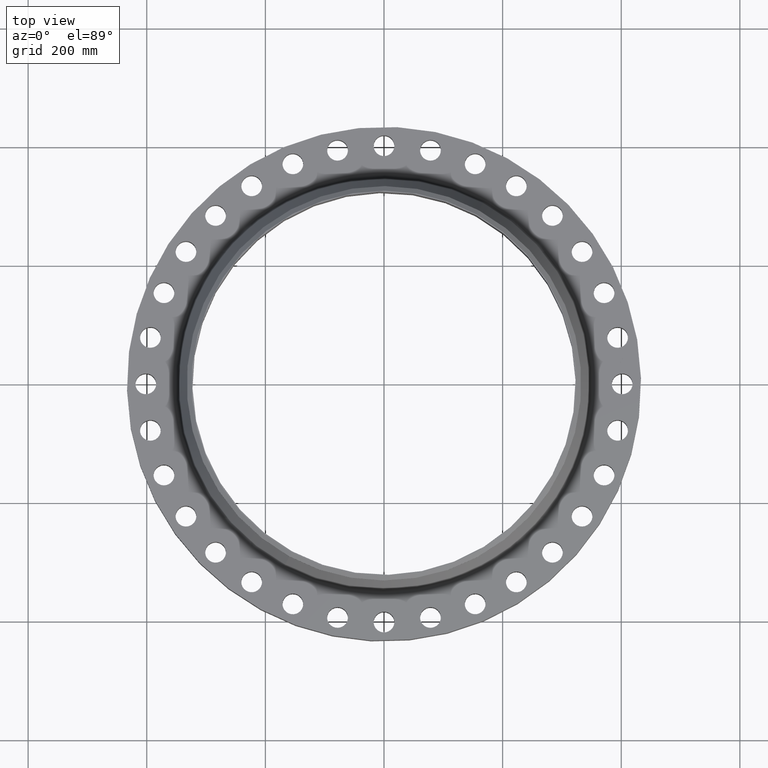
[diagram: clean part render]
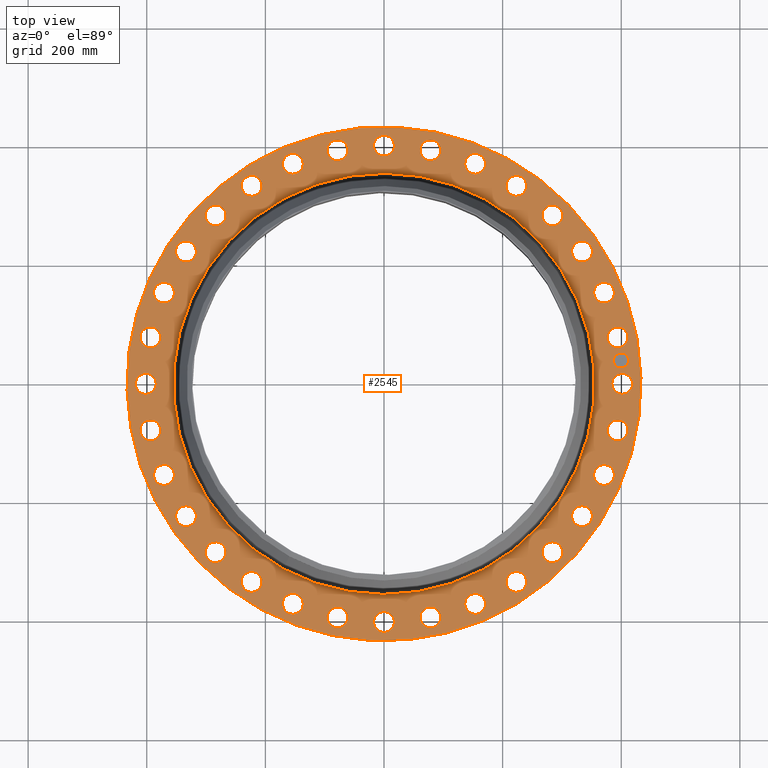
[diagram: same view with one face highlighted and labeled with its STEP entity id]
A machine part, top view. The second image highlights one B-rep face of the part: STEP entity #2545.
In plain terms, the highlighted planar face has unit normal (0, 0, -1).
Its self-contained STEP definition (entity closure, byte-faithful):
#65=AXIS2_PLACEMENT_3D('Circle Axis2P3D',#63,#64,$) ;
#82=AXIS2_PLACEMENT_3D('Circle Axis2P3D',#80,#81,$) ;
#115=AXIS2_PLACEMENT_3D('Circle Axis2P3D',#113,#114,$) ;
#139=AXIS2_PLACEMENT_3D('Circle Axis2P3D',#137,#138,$) ;
#156=AXIS2_PLACEMENT_3D('Circle Axis2P3D',#154,#155,$) ;
#191=AXIS2_PLACEMENT_3D('Circle Axis2P3D',#189,#190,$) ;
#1074=AXIS2_PLACEMENT_3D('Circle Axis2P3D',#1072,#1073,$) ;
#1086=AXIS2_PLACEMENT_3D('Circle Axis2P3D',#1084,#1085,$) ;
#1117=AXIS2_PLACEMENT_3D('Circle Axis2P3D',#1115,#1116,$) ;
#1129=AXIS2_PLACEMENT_3D('Circle Axis2P3D',#1127,#1128,$) ;
#1160=AXIS2_PLACEMENT_3D('Circle Axis2P3D',#1158,#1159,$) ;
#1172=AXIS2_PLACEMENT_3D('Circle Axis2P3D',#1170,#1171,$) ;
#1203=AXIS2_PLACEMENT_3D('Circle Axis2P3D',#1201,#1202,$) ;
#1215=AXIS2_PLACEMENT_3D('Circle Axis2P3D',#1213,#1214,$) ;
#1246=AXIS2_PLACEMENT_3D('Circle Axis2P3D',#1244,#1245,$) ;
#1258=AXIS2_PLACEMENT_3D('Circle Axis2P3D',#1256,#1257,$) ;
#1289=AXIS2_PLACEMENT_3D('Circle Axis2P3D',#1287,#1288,$) ;
#1301=AXIS2_PLACEMENT_3D('Circle Axis2P3D',#1299,#1300,$) ;
#1332=AXIS2_PLACEMENT_3D('Circle Axis2P3D',#1330,#1331,$) ;
#1344=AXIS2_PLACEMENT_3D('Circle Axis2P3D',#1342,#1343,$) ;
#1375=AXIS2_PLACEMENT_3D('Circle Axis2P3D',#1373,#1374,$) ;
#1387=AXIS2_PLACEMENT_3D('Circle Axis2P3D',#1385,#1386,$) ;
#1418=AXIS2_PLACEMENT_3D('Circle Axis2P3D',#1416,#1417,$) ;
#1430=AXIS2_PLACEMENT_3D('Circle Axis2P3D',#1428,#1429,$) ;
#1461=AXIS2_PLACEMENT_3D('Circle Axis2P3D',#1459,#1460,$) ;
#1473=AXIS2_PLACEMENT_3D('Circle Axis2P3D',#1471,#1472,$) ;
#1504=AXIS2_PLACEMENT_3D('Circle Axis2P3D',#1502,#1503,$) ;
#1516=AXIS2_PLACEMENT_3D('Circle Axis2P3D',#1514,#1515,$) ;
#1547=AXIS2_PLACEMENT_3D('Circle Axis2P3D',#1545,#1546,$) ;
#1559=AXIS2_PLACEMENT_3D('Circle Axis2P3D',#1557,#1558,$) ;
#1590=AXIS2_PLACEMENT_3D('Circle Axis2P3D',#1588,#1589,$) ;
#1602=AXIS2_PLACEMENT_3D('Circle Axis2P3D',#1600,#1601,$) ;
#1633=AXIS2_PLACEMENT_3D('Circle Axis2P3D',#1631,#1632,$) ;
#1645=AXIS2_PLACEMENT_3D('Circle Axis2P3D',#1643,#1644,$) ;
#1676=AXIS2_PLACEMENT_3D('Circle Axis2P3D',#1674,#1675,$) ;
#1688=AXIS2_PLACEMENT_3D('Circle Axis2P3D',#1686,#1687,$) ;
#1719=AXIS2_PLACEMENT_3D('Circle Axis2P3D',#1717,#1718,$) ;
#1731=AXIS2_PLACEMENT_3D('Circle Axis2P3D',#1729,#1730,$) ;
#1762=AXIS2_PLACEMENT_3D('Circle Axis2P3D',#1760,#1761,$) ;
#1774=AXIS2_PLACEMENT_3D('Circle Axis2P3D',#1772,#1773,$) ;
#1805=AXIS2_PLACEMENT_3D('Circle Axis2P3D',#1803,#1804,$) ;
#1817=AXIS2_PLACEMENT_3D('Circle Axis2P3D',#1815,#1816,$) ;
#1848=AXIS2_PLACEMENT_3D('Circle Axis2P3D',#1846,#1847,$) ;
#1860=AXIS2_PLACEMENT_3D('Circle Axis2P3D',#1858,#1859,$) ;
#1891=AXIS2_PLACEMENT_3D('Circle Axis2P3D',#1889,#1890,$) ;
#1903=AXIS2_PLACEMENT_3D('Circle Axis2P3D',#1901,#1902,$) ;
#1934=AXIS2_PLACEMENT_3D('Circle Axis2P3D',#1932,#1933,$) ;
#1946=AXIS2_PLACEMENT_3D('Circle Axis2P3D',#1944,#1945,$) ;
#1977=AXIS2_PLACEMENT_3D('Circle Axis2P3D',#1975,#1976,$) ;
#1989=AXIS2_PLACEMENT_3D('Circle Axis2P3D',#1987,#1988,$) ;
#2020=AXIS2_PLACEMENT_3D('Circle Axis2P3D',#2018,#2019,$) ;
#2032=AXIS2_PLACEMENT_3D('Circle Axis2P3D',#2030,#2031,$) ;
#2063=AXIS2_PLACEMENT_3D('Circle Axis2P3D',#2061,#2062,$) ;
#2075=AXIS2_PLACEMENT_3D('Circle Axis2P3D',#2073,#2074,$) ;
#2106=AXIS2_PLACEMENT_3D('Circle Axis2P3D',#2104,#2105,$) ;
#2118=AXIS2_PLACEMENT_3D('Circle Axis2P3D',#2116,#2117,$) ;
#2149=AXIS2_PLACEMENT_3D('Circle Axis2P3D',#2147,#2148,$) ;
#2161=AXIS2_PLACEMENT_3D('Circle Axis2P3D',#2159,#2160,$) ;
#2192=AXIS2_PLACEMENT_3D('Circle Axis2P3D',#2190,#2191,$) ;
#2204=AXIS2_PLACEMENT_3D('Circle Axis2P3D',#2202,#2203,$) ;
#2235=AXIS2_PLACEMENT_3D('Circle Axis2P3D',#2233,#2234,$) ;
#2247=AXIS2_PLACEMENT_3D('Circle Axis2P3D',#2245,#2246,$) ;
#2278=AXIS2_PLACEMENT_3D('Circle Axis2P3D',#2276,#2277,$) ;
#2290=AXIS2_PLACEMENT_3D('Circle Axis2P3D',#2288,#2289,$) ;
#2321=AXIS2_PLACEMENT_3D('Circle Axis2P3D',#2319,#2320,$) ;
#2333=AXIS2_PLACEMENT_3D('Circle Axis2P3D',#2331,#2332,$) ;
#2364=AXIS2_PLACEMENT_3D('Circle Axis2P3D',#2362,#2363,$) ;
#2376=AXIS2_PLACEMENT_3D('Circle Axis2P3D',#2374,#2375,$) ;
#2389=AXIS2_PLACEMENT_3D('Plane Axis2P3D',#2386,#2387,#2388) ;
#2529=AXIS2_PLACEMENT_3D('Circle Axis2P3D',#2527,#2528,$) ;
#2538=AXIS2_PLACEMENT_3D('Circle Axis2P3D',#2536,#2537,$) ;
#46=CARTESIAN_POINT('Vertex',(15.2044680324,0.330803621638,3.44000000001)) ;
#60=CARTESIAN_POINT('Vertex',(16.4155319678,-0.330803621638,3.44000000001)) ;
#63=CARTESIAN_POINT('Axis2P3D Location',(15.8100000001,0.,3.44000000001)) ;
#80=CARTESIAN_POINT('Axis2P3D Location',(15.8100000001,0.,3.44000000001)) ;
#110=CARTESIAN_POINT('Vertex',(-8.17899968862,-14.9715585059,3.44000000001)) ;
#113=CARTESIAN_POINT('Axis2P3D Location',(0.,0.,3.44000000001)) ;
#117=CARTESIAN_POINT('Vertex',(8.17899968862,14.9715585059,3.44000000001)) ;
#137=CARTESIAN_POINT('Axis2P3D Location',(0.,0.,3.44000000001)) ;
#154=CARTESIAN_POINT('Axis2P3D Location',(0.,0.,3.44000000001)) ;
#158=CARTESIAN_POINT('Vertex',(6.70073491307,12.2656129848,3.44000000001)) ;
#160=CARTESIAN_POINT('Vertex',(-6.70073491307,-12.2656129848,3.44000000001)) ;
#189=CARTESIAN_POINT('Axis2P3D Location',(0.,0.,3.44000000001)) ;
#1062=CARTESIAN_POINT('Vertex',(-14.9768550276,2.64179724171,3.44000000001)) ;
#1069=CARTESIAN_POINT('Vertex',(-16.0355755389,3.52695874047,3.44000000001)) ;
#1072=CARTESIAN_POINT('Axis2P3D Location',(-15.5062152832,3.08437799109,3.44000000001)) ;
#1084=CARTESIAN_POINT('Axis2P3D Location',(-15.5062152832,3.08437799109,3.44000000001)) ;
#1105=CARTESIAN_POINT('Vertex',(14.1736898832,-5.5128753186,3.44000000001)) ;
#1112=CARTESIAN_POINT('Vertex',(15.0393809349,-6.58757481284,3.44000000001)) ;
#1115=CARTESIAN_POINT('Axis2P3D Location',(14.6065354091,-6.05022506572,3.44000000001)) ;
#1127=CARTESIAN_POINT('Axis2P3D Location',(14.6065354091,-6.05022506572,3.44000000001)) ;
#1148=CARTESIAN_POINT('Vertex',(-14.1736898832,5.5128753186,3.44000000001)) ;
#1155=CARTESIAN_POINT('Vertex',(-15.0393809349,6.58757481284,3.44000000001)) ;
#1158=CARTESIAN_POINT('Axis2P3D Location',(-14.6065354091,6.05022506572,3.44000000001)) ;
#1170=CARTESIAN_POINT('Axis2P3D Location',(-14.6065354091,6.05022506572,3.44000000001)) ;
#1191=CARTESIAN_POINT('Vertex',(12.8258377853,-8.17209668864,3.44000000001)) ;
#1198=CARTESIAN_POINT('Vertex',(13.4652313558,-9.39503407951,3.44000000001)) ;
#1201=CARTESIAN_POINT('Axis2P3D Location',(13.1455345706,-8.78356538408,3.44000000001)) ;
#1213=CARTESIAN_POINT('Axis2P3D Location',(13.1455345706,-8.78356538408,3.44000000001)) ;
#1234=CARTESIAN_POINT('Vertex',(-12.8258377853,8.17209668864,3.44000000001)) ;
#1241=CARTESIAN_POINT('Vertex',(-13.4652313558,9.39503407951,3.44000000001)) ;
#1244=CARTESIAN_POINT('Axis2P3D Location',(-13.1455345706,8.78356538408,3.44000000001)) ;
#1256=CARTESIAN_POINT('Axis2P3D Location',(-13.1455345706,8.78356538408,3.44000000001)) ;
#1277=CARTESIAN_POINT('Vertex',(10.9850959341,-10.5172689659,3.44000000001)) ;
#1284=CARTESIAN_POINT('Vertex',(11.3736204871,-11.8414474553,3.44000000001)) ;
#1287=CARTESIAN_POINT('Axis2P3D Location',(11.1793582106,-11.1793582106,3.44000000001)) ;
#1299=CARTESIAN_POINT('Axis2P3D Location',(11.1793582106,-11.1793582106,3.44000000001)) ;
#1320=CARTESIAN_POINT('Vertex',(-10.9850959341,10.5172689659,3.44000000001)) ;
#1327=CARTESIAN_POINT('Vertex',(-11.3736204871,11.8414474553,3.44000000001)) ;
#1330=CARTESIAN_POINT('Axis2P3D Location',(-11.1793582106,11.1793582106,3.44000000001)) ;
#1342=CARTESIAN_POINT('Axis2P3D Location',(-11.1793582106,11.1793582106,3.44000000001)) ;
#1363=CARTESIAN_POINT('Vertex',(8.72220300671,-12.458268495,3.44000000001)) ;
#1370=CARTESIAN_POINT('Vertex',(8.84492776144,-13.8328006461,3.44000000001)) ;
#1373=CARTESIAN_POINT('Axis2P3D Location',(8.78356538408,-13.1455345706,3.44000000001)) ;
#1385=CARTESIAN_POINT('Axis2P3D Location',(8.78356538408,-13.1455345706,3.44000000001)) ;
#1406=CARTESIAN_POINT('Vertex',(-8.72220300671,12.458268495,3.44000000001)) ;
#1413=CARTESIAN_POINT('Vertex',(-8.84492776144,13.8328006461,3.44000000001)) ;
#1416=CARTESIAN_POINT('Axis2P3D Location',(-8.78356538408,13.1455345706,3.44000000001)) ;
#1428=CARTESIAN_POINT('Axis2P3D Location',(-8.78356538408,13.1455345706,3.44000000001)) ;
#1449=CARTESIAN_POINT('Vertex',(6.12412070922,-13.9205037524,3.44000000001)) ;
#1456=CARTESIAN_POINT('Vertex',(5.97632942221,-15.2925670657,3.44000000001)) ;
#1459=CARTESIAN_POINT('Axis2P3D Location',(6.05022506572,-14.6065354091,3.44000000001)) ;
#1471=CARTESIAN_POINT('Axis2P3D Location',(6.05022506572,-14.6065354091,3.44000000001)) ;
#1492=CARTESIAN_POINT('Vertex',(-6.12412070922,13.9205037524,3.44000000001)) ;
#1499=CARTESIAN_POINT('Vertex',(-5.97632942221,15.2925670657,3.44000000001)) ;
#1502=CARTESIAN_POINT('Axis2P3D Location',(-6.05022506572,14.6065354091,3.44000000001)) ;
#1514=CARTESIAN_POINT('Axis2P3D Location',(-6.05022506572,14.6065354091,3.44000000001)) ;
#1535=CARTESIAN_POINT('Vertex',(3.29069188732,-14.8477818574,3.44000000001)) ;
#1542=CARTESIAN_POINT('Vertex',(2.87806409485,-16.164648709,3.44000000001)) ;
#1545=CARTESIAN_POINT('Axis2P3D Location',(3.08437799109,-15.5062152832,3.44000000001)) ;
#1557=CARTESIAN_POINT('Axis2P3D Location',(3.08437799109,-15.5062152832,3.44000000001)) ;
#1578=CARTESIAN_POINT('Vertex',(-3.29069188732,14.8477818574,3.44000000001)) ;
#1585=CARTESIAN_POINT('Vertex',(-2.87806409485,16.164648709,3.44000000001)) ;
#1588=CARTESIAN_POINT('Axis2P3D Location',(-3.08437799109,15.5062152832,3.44000000001)) ;
#1600=CARTESIAN_POINT('Axis2P3D Location',(-3.08437799109,15.5062152832,3.44000000001)) ;
#1621=CARTESIAN_POINT('Vertex',(0.330803621638,-15.2044680324,3.44000000001)) ;
#1628=CARTESIAN_POINT('Vertex',(-0.330803621638,-16.4155319678,3.44000000001)) ;
#1631=CARTESIAN_POINT('Axis2P3D Location',(-1.26984658168E-015,-15.8100000001,3.44000000001)) ;
#1643=CARTESIAN_POINT('Axis2P3D Location',(-1.26984658168E-015,-15.8100000001,3.44000000001)) ;
#1664=CARTESIAN_POINT('Vertex',(-0.330803621638,15.2044680324,3.44000000001)) ;
#1671=CARTESIAN_POINT('Vertex',(0.330803621638,16.4155319678,3.44000000001)) ;
#1674=CARTESIAN_POINT('Axis2P3D Location',(-6.6632000778E-016,15.8100000001,3.44000000001)) ;
#1686=CARTESIAN_POINT('Axis2P3D Location',(-6.6632000778E-016,15.8100000001,3.44000000001)) ;
#1707=CARTESIAN_POINT('Vertex',(-2.64179724171,-14.9768550276,3.44000000001)) ;
#1714=CARTESIAN_POINT('Vertex',(-3.52695874047,-16.0355755389,3.44000000001)) ;
#1717=CARTESIAN_POINT('Axis2P3D Location',(-3.08437799109,-15.5062152832,3.44000000001)) ;
#1729=CARTESIAN_POINT('Axis2P3D Location',(-3.08437799109,-15.5062152832,3.44000000001)) ;
#1750=CARTESIAN_POINT('Vertex',(2.64179724171,14.9768550276,3.44000000001)) ;
#1757=CARTESIAN_POINT('Vertex',(3.52695874047,16.0355755389,3.44000000001)) ;
#1760=CARTESIAN_POINT('Axis2P3D Location',(3.08437799109,15.5062152832,3.44000000001)) ;
#1772=CARTESIAN_POINT('Axis2P3D Location',(3.08437799109,15.5062152832,3.44000000001)) ;
#1793=CARTESIAN_POINT('Vertex',(-5.5128753186,-14.1736898832,3.44000000001)) ;
#1800=CARTESIAN_POINT('Vertex',(-6.58757481284,-15.0393809349,3.44000000001)) ;
#1803=CARTESIAN_POINT('Axis2P3D Location',(-6.05022506572,-14.6065354091,3.44000000001)) ;
#1815=CARTESIAN_POINT('Axis2P3D Location',(-6.05022506572,-14.6065354091,3.44000000001)) ;
#1836=CARTESIAN_POINT('Vertex',(5.5128753186,14.1736898832,3.44000000001)) ;
#1843=CARTESIAN_POINT('Vertex',(6.58757481284,15.0393809349,3.44000000001)) ;
#1846=CARTESIAN_POINT('Axis2P3D Location',(6.05022506572,14.6065354091,3.44000000001)) ;
#1858=CARTESIAN_POINT('Axis2P3D Location',(6.05022506572,14.6065354091,3.44000000001)) ;
#1879=CARTESIAN_POINT('Vertex',(-8.17209668864,-12.8258377853,3.44000000001)) ;
#1886=CARTESIAN_POINT('Vertex',(-9.39503407951,-13.4652313558,3.44000000001)) ;
#1889=CARTESIAN_POINT('Axis2P3D Location',(-8.78356538408,-13.1455345706,3.44000000001)) ;
#1901=CARTESIAN_POINT('Axis2P3D Location',(-8.78356538408,-13.1455345706,3.44000000001)) ;
#1922=CARTESIAN_POINT('Vertex',(8.17209668864,12.8258377853,3.44000000001)) ;
#1929=CARTESIAN_POINT('Vertex',(9.39503407951,13.4652313558,3.44000000001)) ;
#1932=CARTESIAN_POINT('Axis2P3D Location',(8.78356538408,13.1455345706,3.44000000001)) ;
#1944=CARTESIAN_POINT('Axis2P3D Location',(8.78356538408,13.1455345706,3.44000000001)) ;
#1965=CARTESIAN_POINT('Vertex',(-10.5172689659,-10.9850959341,3.44000000001)) ;
#1972=CARTESIAN_POINT('Vertex',(-11.8414474553,-11.3736204871,3.44000000001)) ;
#1975=CARTESIAN_POINT('Axis2P3D Location',(-11.1793582106,-11.1793582106,3.44000000001)) ;
#1987=CARTESIAN_POINT('Axis2P3D Location',(-11.1793582106,-11.1793582106,3.44000000001)) ;
#2008=CARTESIAN_POINT('Vertex',(10.5172689659,10.9850959341,3.44000000001)) ;
#2015=CARTESIAN_POINT('Vertex',(11.8414474553,11.3736204871,3.44000000001)) ;
#2018=CARTESIAN_POINT('Axis2P3D Location',(11.1793582106,11.1793582106,3.44000000001)) ;
#2030=CARTESIAN_POINT('Axis2P3D Location',(11.1793582106,11.1793582106,3.44000000001)) ;
#2051=CARTESIAN_POINT('Vertex',(-12.458268495,-8.72220300671,3.44000000001)) ;
#2058=CARTESIAN_POINT('Vertex',(-13.8328006461,-8.84492776144,3.44000000001)) ;
#2061=CARTESIAN_POINT('Axis2P3D Location',(-13.1455345706,-8.78356538408,3.44000000001)) ;
#2073=CARTESIAN_POINT('Axis2P3D Location',(-13.1455345706,-8.78356538408,3.44000000001)) ;
#2094=CARTESIAN_POINT('Vertex',(12.458268495,8.72220300671,3.44000000001)) ;
#2101=CARTESIAN_POINT('Vertex',(13.8328006461,8.84492776144,3.44000000001)) ;
#2104=CARTESIAN_POINT('Axis2P3D Location',(13.1455345706,8.78356538408,3.44000000001)) ;
#2116=CARTESIAN_POINT('Axis2P3D Location',(13.1455345706,8.78356538408,3.44000000001)) ;
#2137=CARTESIAN_POINT('Vertex',(-13.9205037524,-6.12412070922,3.44000000001)) ;
#2144=CARTESIAN_POINT('Vertex',(-15.2925670657,-5.97632942221,3.44000000001)) ;
#2147=CARTESIAN_POINT('Axis2P3D Location',(-14.6065354091,-6.05022506572,3.44000000001)) ;
#2159=CARTESIAN_POINT('Axis2P3D Location',(-14.6065354091,-6.05022506572,3.44000000001)) ;
#2180=CARTESIAN_POINT('Vertex',(13.9205037524,6.12412070922,3.44000000001)) ;
#2187=CARTESIAN_POINT('Vertex',(15.2925670657,5.97632942221,3.44000000001)) ;
#2190=CARTESIAN_POINT('Axis2P3D Location',(14.6065354091,6.05022506572,3.44000000001)) ;
#2202=CARTESIAN_POINT('Axis2P3D Location',(14.6065354091,6.05022506572,3.44000000001)) ;
#2223=CARTESIAN_POINT('Vertex',(-14.8477818574,-3.29069188732,3.44000000001)) ;
#2230=CARTESIAN_POINT('Vertex',(-16.164648709,-2.87806409485,3.44000000001)) ;
#2233=CARTESIAN_POINT('Axis2P3D Location',(-15.5062152832,-3.08437799109,3.44000000001)) ;
#2245=CARTESIAN_POINT('Axis2P3D Location',(-15.5062152832,-3.08437799109,3.44000000001)) ;
#2266=CARTESIAN_POINT('Vertex',(14.8477818574,3.29069188732,3.44000000001)) ;
#2273=CARTESIAN_POINT('Vertex',(16.164648709,2.87806409485,3.44000000001)) ;
#2276=CARTESIAN_POINT('Axis2P3D Location',(15.5062152832,3.08437799109,3.44000000001)) ;
#2288=CARTESIAN_POINT('Axis2P3D Location',(15.5062152832,3.08437799109,3.44000000001)) ;
#2309=CARTESIAN_POINT('Vertex',(-15.2044680324,-0.330803621638,3.44000000001)) ;
#2316=CARTESIAN_POINT('Vertex',(-16.4155319678,0.330803621638,3.44000000001)) ;
#2319=CARTESIAN_POINT('Axis2P3D Location',(-15.8100000001,-1.93616658946E-015,3.44000000001)) ;
#2331=CARTESIAN_POINT('Axis2P3D Location',(-15.8100000001,-1.93616658946E-015,3.44000000001)) ;
#2352=CARTESIAN_POINT('Vertex',(14.9768550276,-2.64179724171,3.44000000001)) ;
#2359=CARTESIAN_POINT('Vertex',(16.0355755389,-3.52695874047,3.44000000001)) ;
#2362=CARTESIAN_POINT('Axis2P3D Location',(15.5062152832,-3.08437799109,3.44000000001)) ;
#2374=CARTESIAN_POINT('Axis2P3D Location',(15.5062152832,-3.08437799109,3.44000000001)) ;
#2386=CARTESIAN_POINT('Axis2P3D Location',(0.,17.0600000001,3.44000000001)) ;
#2527=CARTESIAN_POINT('Axis2P3D Location',(15.7338705288,1.54965098862,3.44000000001)) ;
#2531=CARTESIAN_POINT('Vertex',(15.6848620709,2.04724221147,3.44000000001)) ;
#2533=CARTESIAN_POINT('Vertex',(15.7828789866,1.05205976576,3.44000000001)) ;
#2536=CARTESIAN_POINT('Axis2P3D Location',(15.7338705288,1.54965098862,3.44000000001)) ;
#64=DIRECTION('Axis2P3D Direction',(0.,-0.,-0.0393700787402)) ;
#81=DIRECTION('Axis2P3D Direction',(0.,-0.,-0.0393700787402)) ;
#114=DIRECTION('Axis2P3D Direction',(0.,0.,-0.0393700787402)) ;
#138=DIRECTION('Axis2P3D Direction',(0.,0.,-0.0393700787402)) ;
#155=DIRECTION('Axis2P3D Direction',(0.,0.,-0.0393700787402)) ;
#190=DIRECTION('Axis2P3D Direction',(0.,0.,-0.0393700787402)) ;
#1073=DIRECTION('Axis2P3D Direction',(0.,0.,-0.0393700787402)) ;
#1085=DIRECTION('Axis2P3D Direction',(0.,0.,-0.0393700787402)) ;
#1116=DIRECTION('Axis2P3D Direction',(0.,-0.,-0.0393700787402)) ;
#1128=DIRECTION('Axis2P3D Direction',(0.,-0.,-0.0393700787402)) ;
#1159=DIRECTION('Axis2P3D Direction',(0.,0.,-0.0393700787402)) ;
#1171=DIRECTION('Axis2P3D Direction',(0.,0.,-0.0393700787402)) ;
#1202=DIRECTION('Axis2P3D Direction',(0.,-0.,-0.0393700787402)) ;
#1214=DIRECTION('Axis2P3D Direction',(0.,-0.,-0.0393700787402)) ;
#1245=DIRECTION('Axis2P3D Direction',(0.,0.,-0.0393700787402)) ;
#1257=DIRECTION('Axis2P3D Direction',(0.,0.,-0.0393700787402)) ;
#1288=DIRECTION('Axis2P3D Direction',(0.,-0.,-0.0393700787402)) ;
#1300=DIRECTION('Axis2P3D Direction',(0.,-0.,-0.0393700787402)) ;
#1331=DIRECTION('Axis2P3D Direction',(0.,0.,-0.0393700787402)) ;
#1343=DIRECTION('Axis2P3D Direction',(0.,0.,-0.0393700787402)) ;
#1374=DIRECTION('Axis2P3D Direction',(0.,-0.,-0.0393700787402)) ;
#1386=DIRECTION('Axis2P3D Direction',(0.,-0.,-0.0393700787402)) ;
#1417=DIRECTION('Axis2P3D Direction',(0.,0.,-0.0393700787402)) ;
#1429=DIRECTION('Axis2P3D Direction',(0.,0.,-0.0393700787402)) ;
#1460=DIRECTION('Axis2P3D Direction',(0.,-0.,-0.0393700787402)) ;
#1472=DIRECTION('Axis2P3D Direction',(0.,-0.,-0.0393700787402)) ;
#1503=DIRECTION('Axis2P3D Direction',(0.,0.,-0.0393700787402)) ;
#1515=DIRECTION('Axis2P3D Direction',(0.,0.,-0.0393700787402)) ;
#1546=DIRECTION('Axis2P3D Direction',(0.,-0.,-0.0393700787402)) ;
#1558=DIRECTION('Axis2P3D Direction',(0.,-0.,-0.0393700787402)) ;
#1589=DIRECTION('Axis2P3D Direction',(0.,0.,-0.0393700787402)) ;
#1601=DIRECTION('Axis2P3D Direction',(0.,0.,-0.0393700787402)) ;
#1632=DIRECTION('Axis2P3D Direction',(0.,-0.,-0.0393700787402)) ;
#1644=DIRECTION('Axis2P3D Direction',(0.,-0.,-0.0393700787402)) ;
#1675=DIRECTION('Axis2P3D Direction',(0.,0.,-0.0393700787402)) ;
#1687=DIRECTION('Axis2P3D Direction',(0.,0.,-0.0393700787402)) ;
#1718=DIRECTION('Axis2P3D Direction',(-0.,0.,-0.0393700787402)) ;
#1730=DIRECTION('Axis2P3D Direction',(-0.,0.,-0.0393700787402)) ;
#1761=DIRECTION('Axis2P3D Direction',(0.,0.,-0.0393700787402)) ;
#1773=DIRECTION('Axis2P3D Direction',(0.,0.,-0.0393700787402)) ;
#1804=DIRECTION('Axis2P3D Direction',(-0.,0.,-0.0393700787402)) ;
#1816=DIRECTION('Axis2P3D Direction',(-0.,0.,-0.0393700787402)) ;
#1847=DIRECTION('Axis2P3D Direction',(0.,0.,-0.0393700787402)) ;
#1859=DIRECTION('Axis2P3D Direction',(0.,0.,-0.0393700787402)) ;
#1890=DIRECTION('Axis2P3D Direction',(-0.,0.,-0.0393700787402)) ;
#1902=DIRECTION('Axis2P3D Direction',(-0.,0.,-0.0393700787402)) ;
#1933=DIRECTION('Axis2P3D Direction',(0.,0.,-0.0393700787402)) ;
#1945=DIRECTION('Axis2P3D Direction',(0.,0.,-0.0393700787402)) ;
#1976=DIRECTION('Axis2P3D Direction',(-0.,0.,-0.0393700787402)) ;
#1988=DIRECTION('Axis2P3D Direction',(-0.,0.,-0.0393700787402)) ;
#2019=DIRECTION('Axis2P3D Direction',(0.,0.,-0.0393700787402)) ;
#2031=DIRECTION('Axis2P3D Direction',(0.,0.,-0.0393700787402)) ;
#2062=DIRECTION('Axis2P3D Direction',(-0.,0.,-0.0393700787402)) ;
#2074=DIRECTION('Axis2P3D Direction',(-0.,0.,-0.0393700787402)) ;
#2105=DIRECTION('Axis2P3D Direction',(0.,0.,-0.0393700787402)) ;
#2117=DIRECTION('Axis2P3D Direction',(0.,0.,-0.0393700787402)) ;
#2148=DIRECTION('Axis2P3D Direction',(-0.,0.,-0.0393700787402)) ;
#2160=DIRECTION('Axis2P3D Direction',(-0.,0.,-0.0393700787402)) ;
#2191=DIRECTION('Axis2P3D Direction',(0.,0.,-0.0393700787402)) ;
#2203=DIRECTION('Axis2P3D Direction',(0.,0.,-0.0393700787402)) ;
#2234=DIRECTION('Axis2P3D Direction',(-0.,0.,-0.0393700787402)) ;
#2246=DIRECTION('Axis2P3D Direction',(-0.,0.,-0.0393700787402)) ;
#2277=DIRECTION('Axis2P3D Direction',(0.,0.,-0.0393700787402)) ;
#2289=DIRECTION('Axis2P3D Direction',(0.,0.,-0.0393700787402)) ;
#2320=DIRECTION('Axis2P3D Direction',(-0.,0.,-0.0393700787402)) ;
#2332=DIRECTION('Axis2P3D Direction',(-0.,0.,-0.0393700787402)) ;
#2363=DIRECTION('Axis2P3D Direction',(0.,-0.,-0.0393700787402)) ;
#2375=DIRECTION('Axis2P3D Direction',(0.,-0.,-0.0393700787402)) ;
#2387=DIRECTION('Axis2P3D Direction',(0.,0.,-0.0393700787402)) ;
#2388=DIRECTION('Axis2P3D XDirection',(0.0393700787402,0.,0.)) ;
#2528=DIRECTION('Axis2P3D Direction',(0.,0.,-0.0393700787402)) ;
#2537=DIRECTION('Axis2P3D Direction',(0.,0.,-0.0393700787402)) ;
#2392=ORIENTED_EDGE('',*,*,#141,.F.) ;
#2393=ORIENTED_EDGE('',*,*,#119,.F.) ;
#2396=ORIENTED_EDGE('',*,*,#67,.T.) ;
#2397=ORIENTED_EDGE('',*,*,#84,.T.) ;
#2400=ORIENTED_EDGE('',*,*,#193,.T.) ;
#2401=ORIENTED_EDGE('',*,*,#162,.T.) ;
#2404=ORIENTED_EDGE('',*,*,#2378,.T.) ;
#2405=ORIENTED_EDGE('',*,*,#2366,.T.) ;
#2408=ORIENTED_EDGE('',*,*,#1131,.T.) ;
#2409=ORIENTED_EDGE('',*,*,#1119,.T.) ;
#2412=ORIENTED_EDGE('',*,*,#1217,.T.) ;
#2413=ORIENTED_EDGE('',*,*,#1205,.T.) ;
#2416=ORIENTED_EDGE('',*,*,#1303,.T.) ;
#2417=ORIENTED_EDGE('',*,*,#1291,.T.) ;
#2420=ORIENTED_EDGE('',*,*,#1389,.T.) ;
#2421=ORIENTED_EDGE('',*,*,#1377,.T.) ;
#2424=ORIENTED_EDGE('',*,*,#1475,.T.) ;
#2425=ORIENTED_EDGE('',*,*,#1463,.T.) ;
#2428=ORIENTED_EDGE('',*,*,#1561,.T.) ;
#2429=ORIENTED_EDGE('',*,*,#1549,.T.) ;
#2432=ORIENTED_EDGE('',*,*,#1647,.T.) ;
#2433=ORIENTED_EDGE('',*,*,#1635,.T.) ;
#2436=ORIENTED_EDGE('',*,*,#1733,.T.) ;
#2437=ORIENTED_EDGE('',*,*,#1721,.T.) ;
#2440=ORIENTED_EDGE('',*,*,#1819,.T.) ;
#2441=ORIENTED_EDGE('',*,*,#1807,.T.) ;
#2444=ORIENTED_EDGE('',*,*,#1905,.T.) ;
#2445=ORIENTED_EDGE('',*,*,#1893,.T.) ;
#2448=ORIENTED_EDGE('',*,*,#1991,.T.) ;
#2449=ORIENTED_EDGE('',*,*,#1979,.T.) ;
#2452=ORIENTED_EDGE('',*,*,#2077,.T.) ;
#2453=ORIENTED_EDGE('',*,*,#2065,.T.) ;
#2456=ORIENTED_EDGE('',*,*,#2163,.T.) ;
#2457=ORIENTED_EDGE('',*,*,#2151,.T.) ;
#2460=ORIENTED_EDGE('',*,*,#2249,.T.) ;
#2461=ORIENTED_EDGE('',*,*,#2237,.T.) ;
#2464=ORIENTED_EDGE('',*,*,#2335,.T.) ;
#2465=ORIENTED_EDGE('',*,*,#2323,.T.) ;
#2468=ORIENTED_EDGE('',*,*,#1088,.T.) ;
#2469=ORIENTED_EDGE('',*,*,#1076,.T.) ;
#2472=ORIENTED_EDGE('',*,*,#1174,.T.) ;
#2473=ORIENTED_EDGE('',*,*,#1162,.T.) ;
#2476=ORIENTED_EDGE('',*,*,#1260,.T.) ;
#2477=ORIENTED_EDGE('',*,*,#1248,.T.) ;
#2480=ORIENTED_EDGE('',*,*,#1346,.T.) ;
#2481=ORIENTED_EDGE('',*,*,#1334,.T.) ;
#2484=ORIENTED_EDGE('',*,*,#1432,.T.) ;
#2485=ORIENTED_EDGE('',*,*,#1420,.T.) ;
#2488=ORIENTED_EDGE('',*,*,#1518,.T.) ;
#2489=ORIENTED_EDGE('',*,*,#1506,.T.) ;
#2492=ORIENTED_EDGE('',*,*,#1604,.T.) ;
#2493=ORIENTED_EDGE('',*,*,#1592,.T.) ;
#2496=ORIENTED_EDGE('',*,*,#1690,.T.) ;
#2497=ORIENTED_EDGE('',*,*,#1678,.T.) ;
#2500=ORIENTED_EDGE('',*,*,#1776,.T.) ;
#2501=ORIENTED_EDGE('',*,*,#1764,.T.) ;
#2504=ORIENTED_EDGE('',*,*,#1862,.T.) ;
#2505=ORIENTED_EDGE('',*,*,#1850,.T.) ;
#2508=ORIENTED_EDGE('',*,*,#1948,.T.) ;
#2509=ORIENTED_EDGE('',*,*,#1936,.T.) ;
#2512=ORIENTED_EDGE('',*,*,#2034,.T.) ;
#2513=ORIENTED_EDGE('',*,*,#2022,.T.) ;
#2516=ORIENTED_EDGE('',*,*,#2120,.T.) ;
#2517=ORIENTED_EDGE('',*,*,#2108,.T.) ;
#2520=ORIENTED_EDGE('',*,*,#2206,.T.) ;
#2521=ORIENTED_EDGE('',*,*,#2194,.T.) ;
#2524=ORIENTED_EDGE('',*,*,#2292,.T.) ;
#2525=ORIENTED_EDGE('',*,*,#2280,.T.) ;
#2542=ORIENTED_EDGE('',*,*,#2535,.T.) ;
#2543=ORIENTED_EDGE('',*,*,#2540,.T.) ;
#2398=FACE_BOUND('',#2395,.T.) ;
#2402=FACE_BOUND('',#2399,.T.) ;
#2406=FACE_BOUND('',#2403,.T.) ;
#2410=FACE_BOUND('',#2407,.T.) ;
#2414=FACE_BOUND('',#2411,.T.) ;
#2418=FACE_BOUND('',#2415,.T.) ;
#2422=FACE_BOUND('',#2419,.T.) ;
#2426=FACE_BOUND('',#2423,.T.) ;
#2430=FACE_BOUND('',#2427,.T.) ;
#2434=FACE_BOUND('',#2431,.T.) ;
#2438=FACE_BOUND('',#2435,.T.) ;
#2442=FACE_BOUND('',#2439,.T.) ;
#2446=FACE_BOUND('',#2443,.T.) ;
#2450=FACE_BOUND('',#2447,.T.) ;
#2454=FACE_BOUND('',#2451,.T.) ;
#2458=FACE_BOUND('',#2455,.T.) ;
#2462=FACE_BOUND('',#2459,.T.) ;
#2466=FACE_BOUND('',#2463,.T.) ;
#2470=FACE_BOUND('',#2467,.T.) ;
#2474=FACE_BOUND('',#2471,.T.) ;
#2478=FACE_BOUND('',#2475,.T.) ;
#2482=FACE_BOUND('',#2479,.T.) ;
#2486=FACE_BOUND('',#2483,.T.) ;
#2490=FACE_BOUND('',#2487,.T.) ;
#2494=FACE_BOUND('',#2491,.T.) ;
#2498=FACE_BOUND('',#2495,.T.) ;
#2502=FACE_BOUND('',#2499,.T.) ;
#2506=FACE_BOUND('',#2503,.T.) ;
#2510=FACE_BOUND('',#2507,.T.) ;
#2514=FACE_BOUND('',#2511,.T.) ;
#2518=FACE_BOUND('',#2515,.T.) ;
#2522=FACE_BOUND('',#2519,.T.) ;
#2526=FACE_BOUND('',#2523,.T.) ;
#2544=FACE_BOUND('',#2541,.T.) ;
#2545=ADVANCED_FACE('PartBody',(#2394,#2398,#2402,#2406,#2410,#2414,#2418,#2422,#2426,#2430,#2434,#2438,#2442,#2446,#2450,#2454,#2458,#2462,#2466,#2470,#2474,#2478,#2482,#2486,#2490,#2494,#2498,#2502,#2506,#2510,#2514,#2518,#2522,#2526,#2544),#2390,.F.) ;
#66=CIRCLE('generated circle',#65,0.690000000003) ;
#83=CIRCLE('generated circle',#82,0.690000000003) ;
#116=CIRCLE('generated circle',#115,17.0600000001) ;
#140=CIRCLE('generated circle',#139,17.0600000001) ;
#157=CIRCLE('generated circle',#156,13.9765915111) ;
#192=CIRCLE('generated circle',#191,13.9765915111) ;
#1075=CIRCLE('generated circle',#1074,0.690000000003) ;
#1087=CIRCLE('generated circle',#1086,0.690000000003) ;
#1118=CIRCLE('generated circle',#1117,0.690000000003) ;
#1130=CIRCLE('generated circle',#1129,0.690000000003) ;
#1161=CIRCLE('generated circle',#1160,0.690000000003) ;
#1173=CIRCLE('generated circle',#1172,0.690000000003) ;
#1204=CIRCLE('generated circle',#1203,0.690000000003) ;
#1216=CIRCLE('generated circle',#1215,0.690000000003) ;
#1247=CIRCLE('generated circle',#1246,0.690000000003) ;
#1259=CIRCLE('generated circle',#1258,0.690000000003) ;
#1290=CIRCLE('generated circle',#1289,0.690000000003) ;
#1302=CIRCLE('generated circle',#1301,0.690000000003) ;
#1333=CIRCLE('generated circle',#1332,0.690000000003) ;
#1345=CIRCLE('generated circle',#1344,0.690000000003) ;
#1376=CIRCLE('generated circle',#1375,0.690000000003) ;
#1388=CIRCLE('generated circle',#1387,0.690000000003) ;
#1419=CIRCLE('generated circle',#1418,0.690000000003) ;
#1431=CIRCLE('generated circle',#1430,0.690000000003) ;
#1462=CIRCLE('generated circle',#1461,0.690000000003) ;
#1474=CIRCLE('generated circle',#1473,0.690000000003) ;
#1505=CIRCLE('generated circle',#1504,0.690000000003) ;
#1517=CIRCLE('generated circle',#1516,0.690000000003) ;
#1548=CIRCLE('generated circle',#1547,0.690000000003) ;
#1560=CIRCLE('generated circle',#1559,0.690000000003) ;
#1591=CIRCLE('generated circle',#1590,0.690000000003) ;
#1603=CIRCLE('generated circle',#1602,0.690000000003) ;
#1634=CIRCLE('generated circle',#1633,0.690000000003) ;
#1646=CIRCLE('generated circle',#1645,0.690000000003) ;
#1677=CIRCLE('generated circle',#1676,0.690000000003) ;
#1689=CIRCLE('generated circle',#1688,0.690000000003) ;
#1720=CIRCLE('generated circle',#1719,0.690000000003) ;
#1732=CIRCLE('generated circle',#1731,0.690000000003) ;
#1763=CIRCLE('generated circle',#1762,0.690000000003) ;
#1775=CIRCLE('generated circle',#1774,0.690000000003) ;
#1806=CIRCLE('generated circle',#1805,0.690000000003) ;
#1818=CIRCLE('generated circle',#1817,0.690000000003) ;
#1849=CIRCLE('generated circle',#1848,0.690000000003) ;
#1861=CIRCLE('generated circle',#1860,0.690000000003) ;
#1892=CIRCLE('generated circle',#1891,0.690000000003) ;
#1904=CIRCLE('generated circle',#1903,0.690000000003) ;
#1935=CIRCLE('generated circle',#1934,0.690000000003) ;
#1947=CIRCLE('generated circle',#1946,0.690000000003) ;
#1978=CIRCLE('generated circle',#1977,0.690000000003) ;
#1990=CIRCLE('generated circle',#1989,0.690000000003) ;
#2021=CIRCLE('generated circle',#2020,0.690000000003) ;
#2033=CIRCLE('generated circle',#2032,0.690000000003) ;
#2064=CIRCLE('generated circle',#2063,0.690000000003) ;
#2076=CIRCLE('generated circle',#2075,0.690000000003) ;
#2107=CIRCLE('generated circle',#2106,0.690000000003) ;
#2119=CIRCLE('generated circle',#2118,0.690000000003) ;
#2150=CIRCLE('generated circle',#2149,0.690000000003) ;
#2162=CIRCLE('generated circle',#2161,0.690000000003) ;
#2193=CIRCLE('generated circle',#2192,0.690000000003) ;
#2205=CIRCLE('generated circle',#2204,0.690000000003) ;
#2236=CIRCLE('generated circle',#2235,0.690000000003) ;
#2248=CIRCLE('generated circle',#2247,0.690000000003) ;
#2279=CIRCLE('generated circle',#2278,0.690000000003) ;
#2291=CIRCLE('generated circle',#2290,0.690000000003) ;
#2322=CIRCLE('generated circle',#2321,0.690000000003) ;
#2334=CIRCLE('generated circle',#2333,0.690000000003) ;
#2365=CIRCLE('generated circle',#2364,0.690000000003) ;
#2377=CIRCLE('generated circle',#2376,0.690000000003) ;
#2530=CIRCLE('generated circle',#2529,0.499998853999) ;
#2539=CIRCLE('generated circle',#2538,0.499998853999) ;
#67=EDGE_CURVE('',#47,#61,#66,.T.) ;
#84=EDGE_CURVE('',#61,#47,#83,.T.) ;
#119=EDGE_CURVE('',#111,#118,#116,.T.) ;
#141=EDGE_CURVE('',#118,#111,#140,.T.) ;
#162=EDGE_CURVE('',#159,#161,#157,.T.) ;
#193=EDGE_CURVE('',#161,#159,#192,.T.) ;
#1076=EDGE_CURVE('',#1063,#1070,#1075,.T.) ;
#1088=EDGE_CURVE('',#1070,#1063,#1087,.T.) ;
#1119=EDGE_CURVE('',#1106,#1113,#1118,.T.) ;
#1131=EDGE_CURVE('',#1113,#1106,#1130,.T.) ;
#1162=EDGE_CURVE('',#1149,#1156,#1161,.T.) ;
#1174=EDGE_CURVE('',#1156,#1149,#1173,.T.) ;
#1205=EDGE_CURVE('',#1192,#1199,#1204,.T.) ;
#1217=EDGE_CURVE('',#1199,#1192,#1216,.T.) ;
#1248=EDGE_CURVE('',#1235,#1242,#1247,.T.) ;
#1260=EDGE_CURVE('',#1242,#1235,#1259,.T.) ;
#1291=EDGE_CURVE('',#1278,#1285,#1290,.T.) ;
#1303=EDGE_CURVE('',#1285,#1278,#1302,.T.) ;
#1334=EDGE_CURVE('',#1321,#1328,#1333,.T.) ;
#1346=EDGE_CURVE('',#1328,#1321,#1345,.T.) ;
#1377=EDGE_CURVE('',#1364,#1371,#1376,.T.) ;
#1389=EDGE_CURVE('',#1371,#1364,#1388,.T.) ;
#1420=EDGE_CURVE('',#1407,#1414,#1419,.T.) ;
#1432=EDGE_CURVE('',#1414,#1407,#1431,.T.) ;
#1463=EDGE_CURVE('',#1450,#1457,#1462,.T.) ;
#1475=EDGE_CURVE('',#1457,#1450,#1474,.T.) ;
#1506=EDGE_CURVE('',#1493,#1500,#1505,.T.) ;
#1518=EDGE_CURVE('',#1500,#1493,#1517,.T.) ;
#1549=EDGE_CURVE('',#1536,#1543,#1548,.T.) ;
#1561=EDGE_CURVE('',#1543,#1536,#1560,.T.) ;
#1592=EDGE_CURVE('',#1579,#1586,#1591,.T.) ;
#1604=EDGE_CURVE('',#1586,#1579,#1603,.T.) ;
#1635=EDGE_CURVE('',#1622,#1629,#1634,.T.) ;
#1647=EDGE_CURVE('',#1629,#1622,#1646,.T.) ;
#1678=EDGE_CURVE('',#1665,#1672,#1677,.T.) ;
#1690=EDGE_CURVE('',#1672,#1665,#1689,.T.) ;
#1721=EDGE_CURVE('',#1708,#1715,#1720,.T.) ;
#1733=EDGE_CURVE('',#1715,#1708,#1732,.T.) ;
#1764=EDGE_CURVE('',#1751,#1758,#1763,.T.) ;
#1776=EDGE_CURVE('',#1758,#1751,#1775,.T.) ;
#1807=EDGE_CURVE('',#1794,#1801,#1806,.T.) ;
#1819=EDGE_CURVE('',#1801,#1794,#1818,.T.) ;
#1850=EDGE_CURVE('',#1837,#1844,#1849,.T.) ;
#1862=EDGE_CURVE('',#1844,#1837,#1861,.T.) ;
#1893=EDGE_CURVE('',#1880,#1887,#1892,.T.) ;
#1905=EDGE_CURVE('',#1887,#1880,#1904,.T.) ;
#1936=EDGE_CURVE('',#1923,#1930,#1935,.T.) ;
#1948=EDGE_CURVE('',#1930,#1923,#1947,.T.) ;
#1979=EDGE_CURVE('',#1966,#1973,#1978,.T.) ;
#1991=EDGE_CURVE('',#1973,#1966,#1990,.T.) ;
#2022=EDGE_CURVE('',#2009,#2016,#2021,.T.) ;
#2034=EDGE_CURVE('',#2016,#2009,#2033,.T.) ;
#2065=EDGE_CURVE('',#2052,#2059,#2064,.T.) ;
#2077=EDGE_CURVE('',#2059,#2052,#2076,.T.) ;
#2108=EDGE_CURVE('',#2095,#2102,#2107,.T.) ;
#2120=EDGE_CURVE('',#2102,#2095,#2119,.T.) ;
#2151=EDGE_CURVE('',#2138,#2145,#2150,.T.) ;
#2163=EDGE_CURVE('',#2145,#2138,#2162,.T.) ;
#2194=EDGE_CURVE('',#2181,#2188,#2193,.T.) ;
#2206=EDGE_CURVE('',#2188,#2181,#2205,.T.) ;
#2237=EDGE_CURVE('',#2224,#2231,#2236,.T.) ;
#2249=EDGE_CURVE('',#2231,#2224,#2248,.T.) ;
#2280=EDGE_CURVE('',#2267,#2274,#2279,.T.) ;
#2292=EDGE_CURVE('',#2274,#2267,#2291,.T.) ;
#2323=EDGE_CURVE('',#2310,#2317,#2322,.T.) ;
#2335=EDGE_CURVE('',#2317,#2310,#2334,.T.) ;
#2366=EDGE_CURVE('',#2353,#2360,#2365,.T.) ;
#2378=EDGE_CURVE('',#2360,#2353,#2377,.T.) ;
#2535=EDGE_CURVE('',#2532,#2534,#2530,.T.) ;
#2540=EDGE_CURVE('',#2534,#2532,#2539,.T.) ;
#2391=EDGE_LOOP('',(#2392,#2393)) ;
#2395=EDGE_LOOP('',(#2396,#2397)) ;
#2399=EDGE_LOOP('',(#2400,#2401)) ;
#2403=EDGE_LOOP('',(#2404,#2405)) ;
#2407=EDGE_LOOP('',(#2408,#2409)) ;
#2411=EDGE_LOOP('',(#2412,#2413)) ;
#2415=EDGE_LOOP('',(#2416,#2417)) ;
#2419=EDGE_LOOP('',(#2420,#2421)) ;
#2423=EDGE_LOOP('',(#2424,#2425)) ;
#2427=EDGE_LOOP('',(#2428,#2429)) ;
#2431=EDGE_LOOP('',(#2432,#2433)) ;
#2435=EDGE_LOOP('',(#2436,#2437)) ;
#2439=EDGE_LOOP('',(#2440,#2441)) ;
#2443=EDGE_LOOP('',(#2444,#2445)) ;
#2447=EDGE_LOOP('',(#2448,#2449)) ;
#2451=EDGE_LOOP('',(#2452,#2453)) ;
#2455=EDGE_LOOP('',(#2456,#2457)) ;
#2459=EDGE_LOOP('',(#2460,#2461)) ;
#2463=EDGE_LOOP('',(#2464,#2465)) ;
#2467=EDGE_LOOP('',(#2468,#2469)) ;
#2471=EDGE_LOOP('',(#2472,#2473)) ;
#2475=EDGE_LOOP('',(#2476,#2477)) ;
#2479=EDGE_LOOP('',(#2480,#2481)) ;
#2483=EDGE_LOOP('',(#2484,#2485)) ;
#2487=EDGE_LOOP('',(#2488,#2489)) ;
#2491=EDGE_LOOP('',(#2492,#2493)) ;
#2495=EDGE_LOOP('',(#2496,#2497)) ;
#2499=EDGE_LOOP('',(#2500,#2501)) ;
#2503=EDGE_LOOP('',(#2504,#2505)) ;
#2507=EDGE_LOOP('',(#2508,#2509)) ;
#2511=EDGE_LOOP('',(#2512,#2513)) ;
#2515=EDGE_LOOP('',(#2516,#2517)) ;
#2519=EDGE_LOOP('',(#2520,#2521)) ;
#2523=EDGE_LOOP('',(#2524,#2525)) ;
#2541=EDGE_LOOP('',(#2542,#2543)) ;
#2394=FACE_OUTER_BOUND('',#2391,.T.) ;
#2390=PLANE('',#2389) ;
#47=VERTEX_POINT('',#46) ;
#61=VERTEX_POINT('',#60) ;
#111=VERTEX_POINT('',#110) ;
#118=VERTEX_POINT('',#117) ;
#159=VERTEX_POINT('',#158) ;
#161=VERTEX_POINT('',#160) ;
#1063=VERTEX_POINT('',#1062) ;
#1070=VERTEX_POINT('',#1069) ;
#1106=VERTEX_POINT('',#1105) ;
#1113=VERTEX_POINT('',#1112) ;
#1149=VERTEX_POINT('',#1148) ;
#1156=VERTEX_POINT('',#1155) ;
#1192=VERTEX_POINT('',#1191) ;
#1199=VERTEX_POINT('',#1198) ;
#1235=VERTEX_POINT('',#1234) ;
#1242=VERTEX_POINT('',#1241) ;
#1278=VERTEX_POINT('',#1277) ;
#1285=VERTEX_POINT('',#1284) ;
#1321=VERTEX_POINT('',#1320) ;
#1328=VERTEX_POINT('',#1327) ;
#1364=VERTEX_POINT('',#1363) ;
#1371=VERTEX_POINT('',#1370) ;
#1407=VERTEX_POINT('',#1406) ;
#1414=VERTEX_POINT('',#1413) ;
#1450=VERTEX_POINT('',#1449) ;
#1457=VERTEX_POINT('',#1456) ;
#1493=VERTEX_POINT('',#1492) ;
#1500=VERTEX_POINT('',#1499) ;
#1536=VERTEX_POINT('',#1535) ;
#1543=VERTEX_POINT('',#1542) ;
#1579=VERTEX_POINT('',#1578) ;
#1586=VERTEX_POINT('',#1585) ;
#1622=VERTEX_POINT('',#1621) ;
#1629=VERTEX_POINT('',#1628) ;
#1665=VERTEX_POINT('',#1664) ;
#1672=VERTEX_POINT('',#1671) ;
#1708=VERTEX_POINT('',#1707) ;
#1715=VERTEX_POINT('',#1714) ;
#1751=VERTEX_POINT('',#1750) ;
#1758=VERTEX_POINT('',#1757) ;
#1794=VERTEX_POINT('',#1793) ;
#1801=VERTEX_POINT('',#1800) ;
#1837=VERTEX_POINT('',#1836) ;
#1844=VERTEX_POINT('',#1843) ;
#1880=VERTEX_POINT('',#1879) ;
#1887=VERTEX_POINT('',#1886) ;
#1923=VERTEX_POINT('',#1922) ;
#1930=VERTEX_POINT('',#1929) ;
#1966=VERTEX_POINT('',#1965) ;
#1973=VERTEX_POINT('',#1972) ;
#2009=VERTEX_POINT('',#2008) ;
#2016=VERTEX_POINT('',#2015) ;
#2052=VERTEX_POINT('',#2051) ;
#2059=VERTEX_POINT('',#2058) ;
#2095=VERTEX_POINT('',#2094) ;
#2102=VERTEX_POINT('',#2101) ;
#2138=VERTEX_POINT('',#2137) ;
#2145=VERTEX_POINT('',#2144) ;
#2181=VERTEX_POINT('',#2180) ;
#2188=VERTEX_POINT('',#2187) ;
#2224=VERTEX_POINT('',#2223) ;
#2231=VERTEX_POINT('',#2230) ;
#2267=VERTEX_POINT('',#2266) ;
#2274=VERTEX_POINT('',#2273) ;
#2310=VERTEX_POINT('',#2309) ;
#2317=VERTEX_POINT('',#2316) ;
#2353=VERTEX_POINT('',#2352) ;
#2360=VERTEX_POINT('',#2359) ;
#2532=VERTEX_POINT('',#2531) ;
#2534=VERTEX_POINT('',#2533) ;